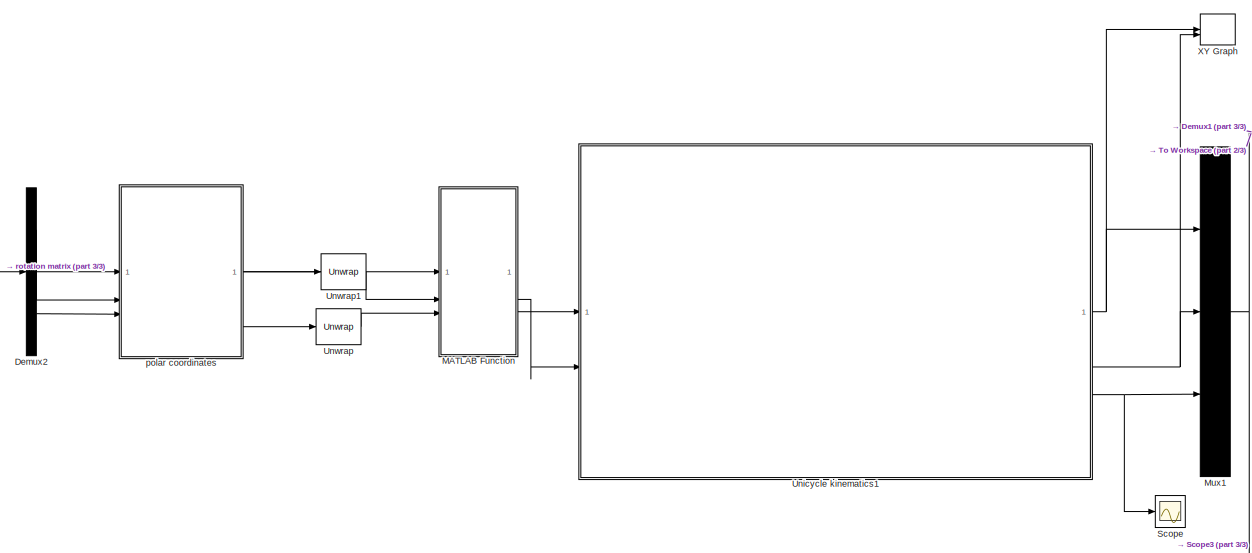
[diagram: root canvas - part 1/3, central region]
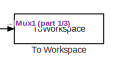
[diagram: root canvas - part 2/3, top right region]
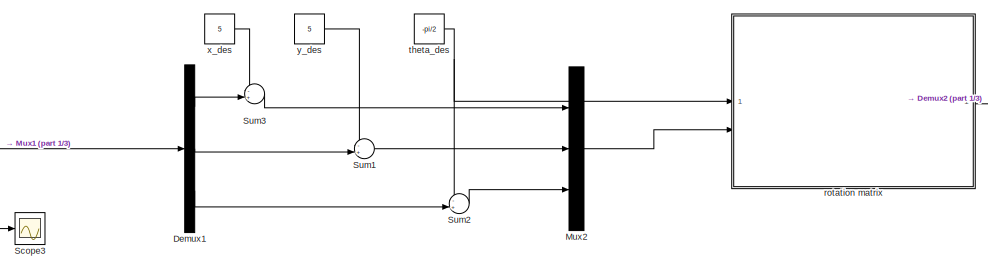
[diagram: root canvas - part 3/3, middle left region]
MODEL slx_022bfd6cce44
KIND model
CONFIG AbsTol = auto
CONFIG EnableMultiTasking = off
CONFIG FixedStep = 1e-3
CONFIG MaxStep = auto
CONFIG MinStep = auto
CONFIG RelTol = 1e-3
CONFIG SampleTimeConstraint = Unconstrained
CONFIG SolverName = ode5
CONFIG StartTime = 0.0
CONFIG StopTime = 15
BLOCK [Demux] Demux1
  Outputs = 3
BLOCK [Demux] Demux2
  Outputs = 3
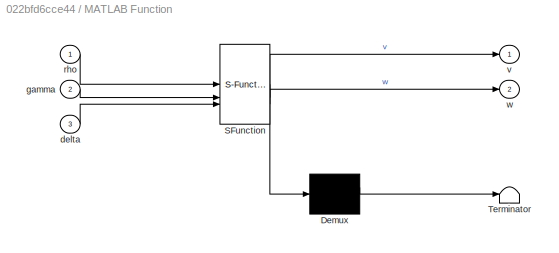
BLOCK [SubSystem] MATLAB Function
  ErrorFcn = Stateflow.Translate.translate
  PermitHierarchicalResolution = ExplicitOnly
  SFBlockType = MATLAB Function
  TreatAsAtomicUnit = on
BLOCK [Demux] MATLAB Function/ Demux 
  Outputs = 1
BLOCK [S-Function] MATLAB Function/ SFunction 
  EnableBusSupport = off
  FunctionName = sf_sfun
  PortCounts = [3 3]
  SFcnIsStateOwnerBlock = off
  SFunctionDeploymentMode = off
  Tag = Stateflow S-Function 8
BLOCK [Terminator] MATLAB Function/ Terminator 
BLOCK [Inport] MATLAB Function/delta
  Port = 3
BLOCK [Inport] MATLAB Function/gamma
  Port = 2
BLOCK [Inport] MATLAB Function/rho
BLOCK [Outport] MATLAB Function/v
BLOCK [Outport] MATLAB Function/w
  Port = 2
BLOCK [Mux] Mux1
  DisplayOption = bar
  Inputs = 3
BLOCK [Mux] Mux2
  DisplayOption = bar
  Inputs = 3
BLOCK [Scope] Scope
  ActiveDisplayYMaximum = 1
  ActiveDisplayYMinimum = -1
  Floating = off
  GraphicalSettings = {"Style":{"BackgroundColor":[0.12941176470588237,0.12941176470588237,0.12941176470588237],"AxesColor":[0.07058823529411765,0.07058823529411765,0.07058823529411765],"LabelsColor":[0.8509803921568627,0.8509803921568627,0.8509803921568627],"PreserveColors":false,"Visible":[true],"LineStyle":["-"],"LineWidth":[1.5],"BarWidth":[0.9],"LineColor":["auto"],"LineFaceAlpha":[1],"LineEdgeAlpha":[1],"Marker":...<+1940ch>
  MultipleDisplayCache = [{"MaxYLimMag":1,"MaxYLimReal":1,"MinYLimMag":0,"MinYLimReal":-1,"PlotAsMagnitudePhase":false,"ShowGrid":true,"ShowLegend":false,"Title":"%<SignalLabel>","YLabel":""}]
  NumInputPorts = 1
  ScopeFrameLocation = window
  WasSavedAsWebScope = on
  WindowPosition = [1.000000,41.000000,2560.000000,1377.000000,]
BLOCK [Scope] Scope3
  ActiveDisplayYMaximum = 1
  ActiveDisplayYMinimum = -1
  DataLoggingVariableName = ScopeData4
  Floating = off
  GraphicalSettings = {"Style":{"BackgroundColor":[0.12941176470588237,0.12941176470588237,0.12941176470588237],"AxesColor":[0.07058823529411765,0.07058823529411765,0.07058823529411765],"LabelsColor":[0.8509803921568627,0.8509803921568627,0.8509803921568627],"PreserveColors":false,"Visible":[true,true,true],"LineStyle":["-","-","-"],"LineWidth":[1.5,1.5,1.5],"BarWidth":[0.9,0.9,0.9],"LineColor":["auto","auto","auto"],"...<+2137ch>
  MultipleDisplayCache = [{"MaxYLimMag":1,"MaxYLimReal":1,"MinYLimMag":0,"MinYLimReal":-1,"PlotAsMagnitudePhase":false,"ShowGrid":true,"ShowLegend":false,"Title":"%<SignalLabel>","YLabel":""}]
  NumInputPorts = 1
  ScopeFrameLocation = window
  WasSavedAsWebScope = on
  WindowPosition = [1000.000000,510.000000,560.000000,420.000000,]
BLOCK [Sum] Sum1
  Inputs = -+|
BLOCK [Sum] Sum2
  Inputs = -+|
BLOCK [Sum] Sum3
  Inputs = -+|
BLOCK [ToWorkspace] To Workspace
  FixptAsFi = on
  MaxDataPoints = inf
  SampleTime = -1
  SaveFormat = Timeseries
  VariableName = sim_pose
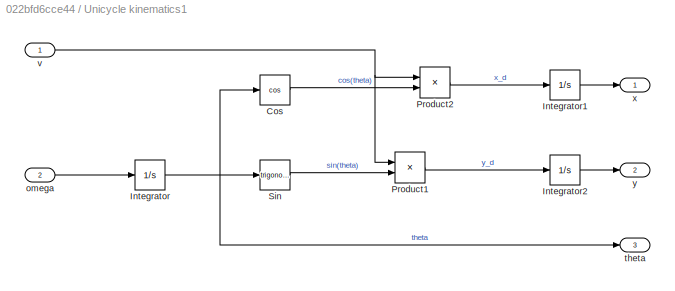
BLOCK [SubSystem] Unicycle kinematics1
BLOCK [Trigonometry] Unicycle kinematics1/Cos
  Operator = cos
BLOCK [Integrator] Unicycle kinematics1/Integrator
BLOCK [Integrator] Unicycle kinematics1/Integrator1
BLOCK [Integrator] Unicycle kinematics1/Integrator2
BLOCK [Product] Unicycle kinematics1/Product1
BLOCK [Product] Unicycle kinematics1/Product2
BLOCK [Trigonometry] Unicycle kinematics1/Sin
BLOCK [Inport] Unicycle kinematics1/omega
  Port = 2
BLOCK [Outport] Unicycle kinematics1/theta
  Port = 3
BLOCK [Inport] Unicycle kinematics1/v
BLOCK [Outport] Unicycle kinematics1/x
BLOCK [Outport] Unicycle kinematics1/y
  Port = 2
BLOCK [Reference] Unwrap  REF=dspsigops/Unwrap
  SourceBlock = dspsigops/Unwrap
  SourceType = Unwrap
  UserDataPersistent = on
BLOCK [Reference] Unwrap1  REF=dspsigops/Unwrap
  SourceBlock = dspsigops/Unwrap
  SourceType = Unwrap
  UserDataPersistent = on
BLOCK [Record] XY Graph
  CompatibilityTag = XY
  FileSettingsInternal = {"entries":[{"content":{"excelSettings":{"content":{},"type":"Streamout.ExcelSettings"},"parquetSettings":{"content":{},"type":"Streamout.ParquetSettings"}},"type":"Streamout.FileSettingStorage","uuid":""}],"packageUris":["http:\/\/schema.mathworks.com\/mf0\/streamout_blocks\/R2020a"],"version":"1.0"}
  FrameSettings = [0, 0]
  Layout = [1 1]
  NumPorts = 2.0
  SignalsInternal = {"entries":[{"content":{"signals":[{"content":{"blockPath":[],"dimensions":[1],"domain":"","lineColor":"#a2142f","plots":[ 1 ],"port":1,"sid":[""],"signalID":1,"signalName":"Unicycle kinematics1:1"},"type":"RecordBlkView.Signal","uuid":""},{"content":{"blockPath":[],"dimensions":[1],"domain":"","lineColor":"#139fff","plots":[ 1 ],"port":2,"sid":[""],"signalID":2,"signalName":"Unicycle kinematics1:...<+190ch>
  VisualizationBindings = {"xyplotplugin":{"info":[{"series":[{"bindingParametersList":[{"parameter":"X-Axis","signalID":1,"signalName":"Unicycle kinematics1:1"},{"parameter":"Y-Axis","signalID":2,"signalName":"Unicycle kinematics1:2"}],"seriesID":0}],"subplotID":1}]}}
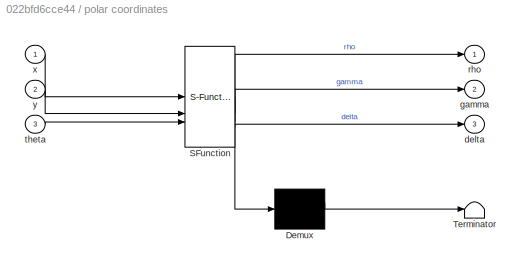
BLOCK [SubSystem] polar coordinates
  ErrorFcn = Stateflow.Translate.translate
  PermitHierarchicalResolution = ExplicitOnly
  SFBlockType = MATLAB Function
  TreatAsAtomicUnit = on
BLOCK [Demux] polar coordinates/ Demux 
  Outputs = 1
BLOCK [S-Function] polar coordinates/ SFunction 
  EnableBusSupport = off
  FunctionName = sf_sfun
  PortCounts = [3 4]
  SFcnIsStateOwnerBlock = off
  SFunctionDeploymentMode = off
  Tag = Stateflow S-Function 11
BLOCK [Terminator] polar coordinates/ Terminator 
BLOCK [Outport] polar coordinates/delta
  Port = 3
BLOCK [Outport] polar coordinates/gamma
  Port = 2
BLOCK [Outport] polar coordinates/rho
BLOCK [Inport] polar coordinates/theta
  Port = 3
BLOCK [Inport] polar coordinates/x
BLOCK [Inport] polar coordinates/y
  Port = 2
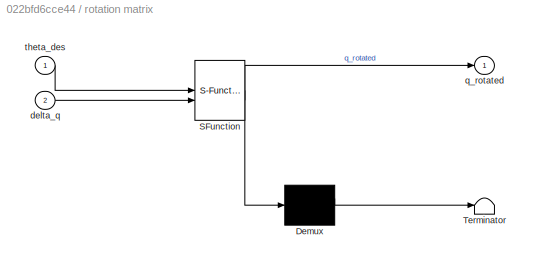
BLOCK [SubSystem] rotation matrix
  ErrorFcn = Stateflow.Translate.translate
  PermitHierarchicalResolution = ExplicitOnly
  SFBlockType = MATLAB Function
  TreatAsAtomicUnit = on
BLOCK [Demux] rotation matrix/ Demux 
  Outputs = 1
BLOCK [S-Function] rotation matrix/ SFunction 
  EnableBusSupport = off
  FunctionName = sf_sfun
  PortCounts = [2 2]
  SFcnIsStateOwnerBlock = off
  SFunctionDeploymentMode = off
  Tag = Stateflow S-Function 4
BLOCK [Terminator] rotation matrix/ Terminator 
BLOCK [Inport] rotation matrix/delta_q
  Port = 2
BLOCK [Outport] rotation matrix/q_rotated
BLOCK [Inport] rotation matrix/theta_des
BLOCK [Constant] theta_des
  Value = -pi/2
BLOCK [Constant] x_des
  Value = 5
BLOCK [Constant] y_des
  Value = 5
LINE Demux1:1 -> Sum3:2
LINE Demux1:2 -> Sum1:2
LINE Demux1:3 -> Sum2:2
LINE Demux2:1 -> polar coordinates:1
LINE Demux2:2 -> polar coordinates:2
LINE Demux2:3 -> polar coordinates:3
LINE MATLAB Function:1 -> Unicycle kinematics1:1
LINE MATLAB Function:2 -> Unicycle kinematics1:2
NET Mux1:1 -> Demux1:1, Scope3:1, To Workspace:1
LINE Mux2:1 -> rotation matrix:2
LINE Sum1:1 -> Mux2:2
LINE Sum2:1 -> Mux2:3
LINE Sum3:1 -> Mux2:1
LINE Unicycle kinematics1/Cos:1 -> Unicycle kinematics1/Product2:2
LINE Unicycle kinematics1/Integrator1:1 -> Unicycle kinematics1/x:1
LINE Unicycle kinematics1/Integrator2:1 -> Unicycle kinematics1/y:1
NET Unicycle kinematics1/Integrator:1 -> Unicycle kinematics1/Cos:1, Unicycle kinematics1/Sin:1, Unicycle kinematics1/theta:1
LINE Unicycle kinematics1/Product1:1 -> Unicycle kinematics1/Integrator2:1
LINE Unicycle kinematics1/Product2:1 -> Unicycle kinematics1/Integrator1:1
LINE Unicycle kinematics1/Sin:1 -> Unicycle kinematics1/Product1:2
LINE Unicycle kinematics1/omega:1 -> Unicycle kinematics1/Integrator:1
NET Unicycle kinematics1/v:1 -> Unicycle kinematics1/Product1:1, Unicycle kinematics1/Product2:1
NET Unicycle kinematics1:1 -> Mux1:1, XY Graph:1
NET Unicycle kinematics1:2 -> Mux1:2, XY Graph:2
NET Unicycle kinematics1:3 -> Mux1:3, Scope:1
LINE Unwrap1:1 -> MATLAB Function:2
LINE Unwrap:1 -> MATLAB Function:3
LINE polar coordinates:1 -> MATLAB Function:1
LINE polar coordinates:2 -> Unwrap1:1
LINE polar coordinates:3 -> Unwrap:1
LINE rotation matrix:1 -> Demux2:1
NET theta_des:1 -> Sum2:1, rotation matrix:1
LINE x_des:1 -> Sum3:1
LINE y_des:1 -> Sum1:1
note: NET lines group one-source signal fan-out (src -> all destinations, sorted); 1:1 wires keep LINE
CHART rotation matrix states=1 transitions=1
  STATE_LABEL 'eML_blk_kernel()'
  STATE_LABEL 'SCRIPT:\nfunction q_rotated  = fcn(theta_des, delta_q)\n\n% rotation matrix\nR = [cos(theta_des), sin(theta_des), 0;\n    -sin(theta_des), cos(theta_des), 0; \n    0,              0,              1];\n\n% rotate\nq_rotated = R*delta_q;\n'
CHART MATLAB Function states=1 transitions=1
  STATE_LABEL 'eML_blk_kernel()'
  STATE_LABEL 'SCRIPT:\nfunction [v , w] = fcn(rho, gamma, delta)\n\n% adjust gains\nk1 = 5;%3\nk2 = 5;%6\nk3 = 5;%1.5\n\n\n% controller\n\nv = k1*rho*cos(gamma);\n\nif (abs(gamma) > 0.001)\n    temp = sin(gamma)/gamma;\nelse\n    temp = 1;\nend\n\nw = k2*gamma + (k1*temp*cos(gamma))*(gamma+k3*delta);\n\nif rho < 0.01\n    v = 0;\n    w = 0;\nend\n\n'
CHART polar coordinates states=1 transitions=1
  STATE_LABEL 'eML_blk_kernel()'
  STATE_LABEL 'SCRIPT:\nfunction [rho, gamma, delta] = fcn(x, y, theta)\n\nrho = sqrt(x^2+y^2);\ngamma = atan2(y, x) + pi - theta;\ndelta = gamma + theta;\n\n'
CHART  states=0 transitions=0
CHART  states=0 transitions=0
CHART  states=0 transitions=0
